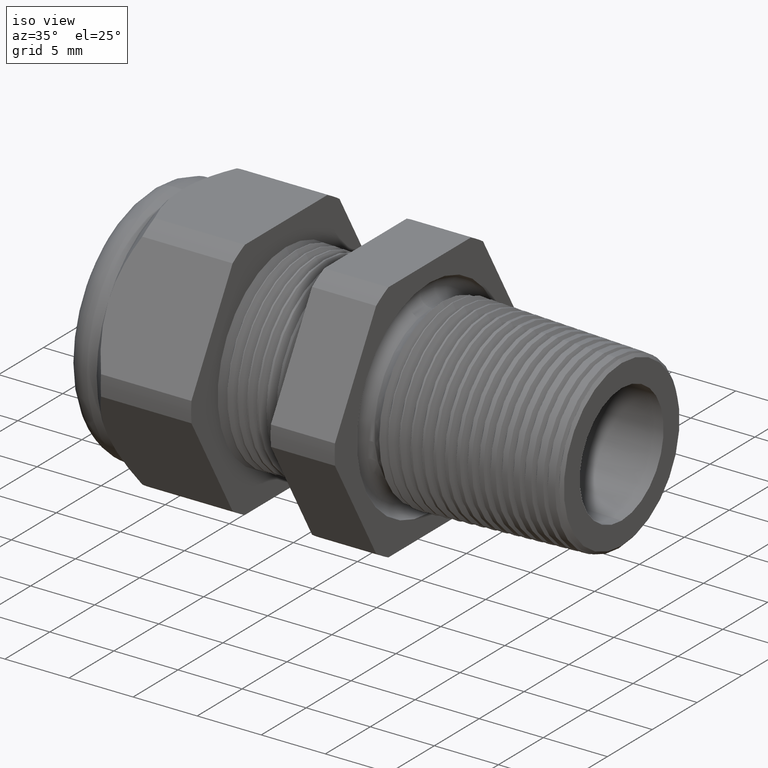
[diagram: clean part render]
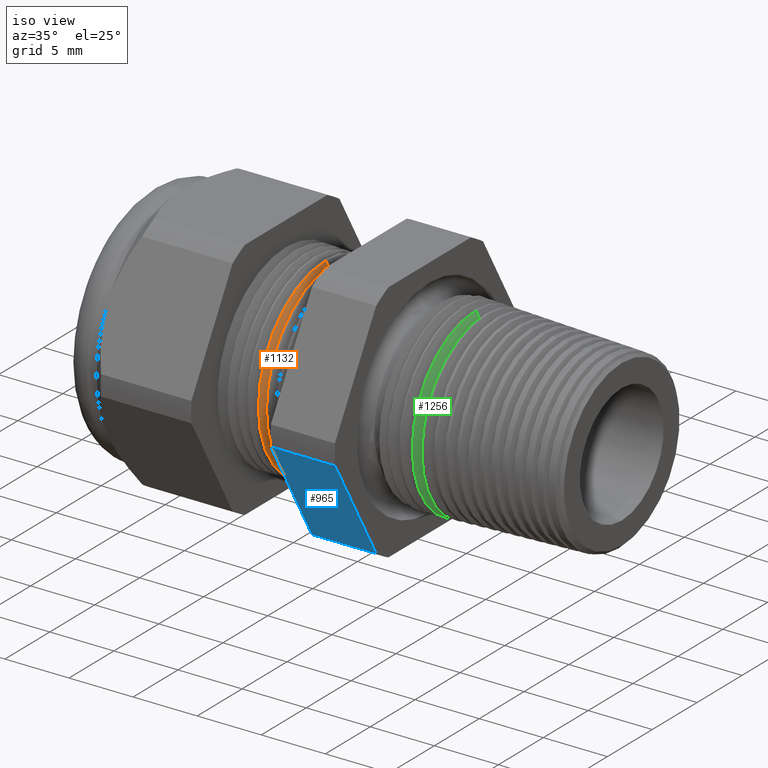
[diagram: same view with three faces highlighted in distinct colors, each labeled with its STEP entity id]
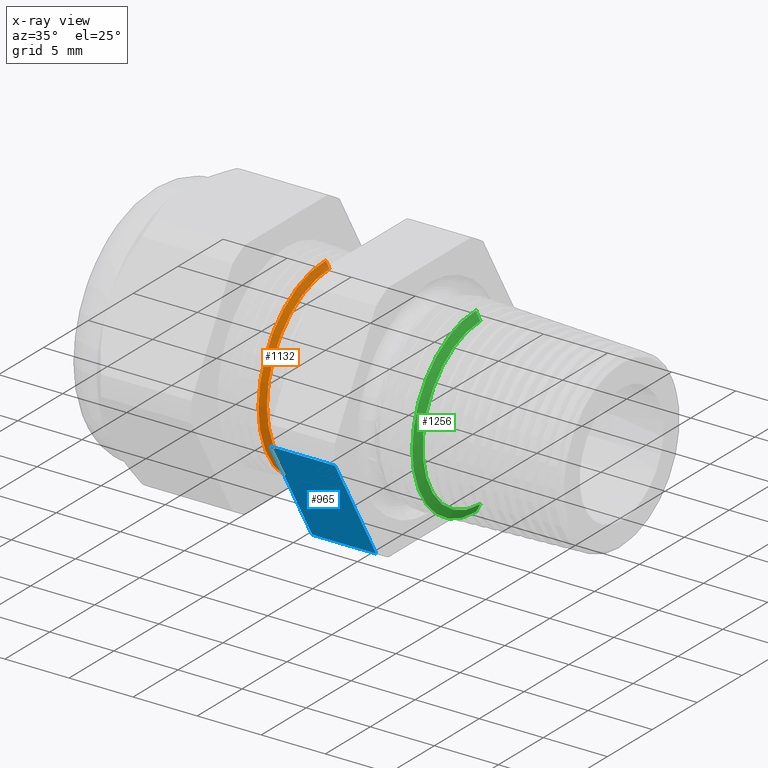
[diagram: x-ray of the same camera — body ghosted, the three highlighted faces saturated]
A machine part, iso view with three faces highlighted in distinct colors.
The next image is the same camera in x-ray (body ghosted, the three faces saturated) — at least one of them is partly hidden behind the body in this view.
Their STEP definitions:

[orange] entity #1132 — the highlighted conical surface has half-angle 62 deg.
#97 = EDGE_CURVE ( 'NONE', #112, #98, #2241, .T. ) ;
#98 = VERTEX_POINT ( 'NONE', #2232 ) ;
#112 = VERTEX_POINT ( 'NONE', #2269 ) ;
#113 = VERTEX_POINT ( 'NONE', #2268 ) ;
#155 = VERTEX_POINT ( 'NONE', #2371 ) ;
#157 = EDGE_CURVE ( 'NONE', #113, #155, #2370, .T. ) ;
#612 = EDGE_CURVE ( 'NONE', #155, #98, #3215, .T. ) ;
#1132 = ADVANCED_FACE ( 'NONE', ( #4155 ), #4154, .T. ) ;
#1133 = EDGE_LOOP ( 'NONE', ( #1134, #1135, #1137, #1189 ) ) ;
#1134 = ORIENTED_EDGE ( 'NONE', *, *, #97, .F. ) ;
#1135 = ORIENTED_EDGE ( 'NONE', *, *, #1136, .F. ) ;
#1136 = EDGE_CURVE ( 'NONE', #113, #112, #4149, .T. ) ;
#1137 = ORIENTED_EDGE ( 'NONE', *, *, #157, .T. ) ;
#1189 = ORIENTED_EDGE ( 'NONE', *, *, #612, .T. ) ;
#2232 = CARTESIAN_POINT ( 'NONE',  ( -0.6285958635830611900, 3.622793101166233200E-017, -0.2957302278010600600 ) ) ;
#2233 = DIRECTION ( 'NONE',  ( -0.4694715627859021900, 1.081298943409537900E-016, -0.8829475928589208800 ) ) ;
#2234 = VECTOR ( 'NONE', #2233, 39.37007874015748100 ) ;
#2235 = CARTESIAN_POINT ( 'NONE',  ( -0.6308661417322835000, 3.673940397442058900E-017, -0.2999999999999999900 ) ) ;
#2241 = LINE ( 'NONE', #2235, #2234 ) ;
#2268 = CARTESIAN_POINT ( 'NONE',  ( -0.6173136650747177400, 0.0000000000000000000, 0.2745114984791284200 ) ) ;
#2269 = CARTESIAN_POINT ( 'NONE',  ( -0.6173136650747177400, 3.491723524146469700E-017, -0.2745114984791284200 ) ) ;
#2367 = DIRECTION ( 'NONE',  ( -0.4694715627859021900, 0.0000000000000000000, 0.8829475928589208800 ) ) ;
#2368 = VECTOR ( 'NONE', #2367, 39.37007874015748100 ) ;
#2369 = CARTESIAN_POINT ( 'NONE',  ( -0.6308661417322835000, 0.0000000000000000000, 0.2999999999999999900 ) ) ;
#2370 = LINE ( 'NONE', #2369, #2368 ) ;
#2371 = CARTESIAN_POINT ( 'NONE',  ( -0.6285958635830611900, 0.0000000000000000000, 0.2957302278010600600 ) ) ;
#3207 = DIRECTION ( 'NONE',  ( 0.0000000000000000000, 0.0000000000000000000, 1.000000000000000000 ) ) ;
#3208 = DIRECTION ( 'NONE',  ( 1.000000000000000000, 0.0000000000000000000, 0.0000000000000000000 ) ) ;
#3209 = CARTESIAN_POINT ( 'NONE',  ( -0.6285958635830611900, 0.0000000000000000000, 0.0000000000000000000 ) ) ;
#3210 = AXIS2_PLACEMENT_3D ( 'NONE', #3209, #3208, #3207 ) ;
#3215 = CIRCLE ( 'NONE', #3210, 0.2957302278010600600 ) ;
#4146 = DIRECTION ( 'NONE',  ( 0.0000000000000000000, 0.0000000000000000000, -1.000000000000000000 ) ) ;
#4147 = DIRECTION ( 'NONE',  ( 1.000000000000000000, 0.0000000000000000000, 0.0000000000000000000 ) ) ;
#4148 = AXIS2_PLACEMENT_3D ( 'NONE', #4153, #4147, #4146 ) ;
#4149 = CIRCLE ( 'NONE', #4148, 0.2745114984791284200 ) ;
#4150 = DIRECTION ( 'NONE',  ( 0.0000000000000000000, 0.0000000000000000000, 1.000000000000000000 ) ) ;
#4151 = DIRECTION ( 'NONE',  ( -1.000000000000000000, 0.0000000000000000000, 0.0000000000000000000 ) ) ;
#4152 = AXIS2_PLACEMENT_3D ( 'NONE', #4159, #4151, #4150 ) ;
#4153 = CARTESIAN_POINT ( 'NONE',  ( -0.6173136650747177400, 0.0000000000000000000, 0.0000000000000000000 ) ) ;
#4154 = CONICAL_SURFACE ( 'NONE', #4152, 0.2999999999999999900, 1.082104136236471400 ) ;
#4155 = FACE_OUTER_BOUND ( 'NONE', #1133, .T. ) ;
#4159 = CARTESIAN_POINT ( 'NONE',  ( -0.6308661417322835000, 0.0000000000000000000, 0.0000000000000000000 ) ) ;

[blue] entity #965 — the highlighted planar face has unit normal (0, -0.866, -0.5).
#809 = VERTEX_POINT ( 'NONE', #3680 ) ;
#811 = EDGE_CURVE ( 'NONE', #809, #812, #3673, .T. ) ;
#812 = VERTEX_POINT ( 'NONE', #3669 ) ;
#940 = ORIENTED_EDGE ( 'NONE', *, *, #961, .F. ) ;
#941 = ORIENTED_EDGE ( 'NONE', *, *, #811, .F. ) ;
#942 = ORIENTED_EDGE ( 'NONE', *, *, #943, .T. ) ;
#943 = EDGE_CURVE ( 'NONE', #809, #944, #3888, .T. ) ;
#944 = VERTEX_POINT ( 'NONE', #3880 ) ;
#945 = ORIENTED_EDGE ( 'NONE', *, *, #946, .F. ) ;
#946 = EDGE_CURVE ( 'NONE', #962, #944, #3944, .T. ) ;
#961 = EDGE_CURVE ( 'NONE', #812, #962, #3923, .T. ) ;
#962 = VERTEX_POINT ( 'NONE', #3915 ) ;
#965 = ADVANCED_FACE ( 'NONE', ( #3914 ), #3973, .T. ) ;
#966 = EDGE_LOOP ( 'NONE', ( #940, #941, #942, #945 ) ) ;
#3669 = CARTESIAN_POINT ( 'NONE',  ( -0.3100000000000000000, -0.2344281053908202100, -0.3439586107409880500 ) ) ;
#3670 = DIRECTION ( 'NONE',  ( 0.0000000000000000000, 0.5000000000000003300, -0.8660254037844383700 ) ) ;
#3671 = VECTOR ( 'NONE', #3670, 39.37007874015748100 ) ;
#3672 = CARTESIAN_POINT ( 'NONE',  ( -0.3100000000000000000, -0.1372595264191642800, -0.5122595264191648300 ) ) ;
#3673 = LINE ( 'NONE', #3672, #3671 ) ;
#3680 = CARTESIAN_POINT ( 'NONE',  ( -0.3100000000000000000, -0.4150909474475088000, -0.03104138925901237000 ) ) ;
#3880 = CARTESIAN_POINT ( 'NONE',  ( -0.5068503937007874400, -0.4150909474475088000, -0.03104138925901237000 ) ) ;
#3881 = DIRECTION ( 'NONE',  ( -1.000000000000000000, 0.0000000000000000000, 0.0000000000000000000 ) ) ;
#3882 = VECTOR ( 'NONE', #3881, 39.37007874015748100 ) ;
#3883 = CARTESIAN_POINT ( 'NONE',  ( 0.2800000000000000300, -0.4150909474475088000, -0.03104138925901237000 ) ) ;
#3888 = LINE ( 'NONE', #3883, #3882 ) ;
#3914 = FACE_OUTER_BOUND ( 'NONE', #966, .T. ) ;
#3915 = CARTESIAN_POINT ( 'NONE',  ( -0.5068503937007874400, -0.2344281053908202100, -0.3439586107409880500 ) ) ;
#3916 = DIRECTION ( 'NONE',  ( -1.000000000000000000, 0.0000000000000000000, 0.0000000000000000000 ) ) ;
#3917 = VECTOR ( 'NONE', #3916, 39.37007874015748100 ) ;
#3918 = CARTESIAN_POINT ( 'NONE',  ( 0.2800000000000000300, -0.2344281053908202100, -0.3439586107409880500 ) ) ;
#3923 = LINE ( 'NONE', #3918, #3917 ) ;
#3941 = DIRECTION ( 'NONE',  ( 0.0000000000000000000, -0.5000000000000003300, 0.8660254037844383700 ) ) ;
#3942 = VECTOR ( 'NONE', #3941, 39.37007874015748100 ) ;
#3943 = CARTESIAN_POINT ( 'NONE',  ( -0.5068503937007874400, -0.1372595264191642800, -0.5122595264191648300 ) ) ;
#3944 = LINE ( 'NONE', #3943, #3942 ) ;
#3969 = DIRECTION ( 'NONE',  ( 0.0000000000000000000, 0.5000000000000003300, -0.8660254037844383700 ) ) ;
#3970 = DIRECTION ( 'NONE',  ( 0.0000000000000000000, -0.8660254037844384900, -0.5000000000000004400 ) ) ;
#3971 = CARTESIAN_POINT ( 'NONE',  ( 0.2800000000000000300, -0.2344281053908202900, -0.3439586107409879900 ) ) ;
#3972 = AXIS2_PLACEMENT_3D ( 'NONE', #3971, #3970, #3969 ) ;
#3973 = PLANE ( 'NONE',  #3972 ) ;

[green] entity #1256 — the highlighted conical surface has half-angle 62 deg.
#589 = EDGE_CURVE ( 'NONE', #1495, #1496, #3191, .T. ) ;
#1256 = ADVANCED_FACE ( 'NONE', ( #4325 ), #4320, .T. ) ;
#1257 = EDGE_LOOP ( 'NONE', ( #1258, #1259, #1261, #1262 ) ) ;
#1258 = ORIENTED_EDGE ( 'NONE', *, *, #1503, .F. ) ;
#1259 = ORIENTED_EDGE ( 'NONE', *, *, #1260, .F. ) ;
#1260 = EDGE_CURVE ( 'NONE', #1322, #1393, #4314, .T. ) ;
#1261 = ORIENTED_EDGE ( 'NONE', *, *, #1500, .T. ) ;
#1262 = ORIENTED_EDGE ( 'NONE', *, *, #589, .T. ) ;
#1322 = VERTEX_POINT ( 'NONE', #4409 ) ;
#1393 = VERTEX_POINT ( 'NONE', #4499 ) ;
#1495 = VERTEX_POINT ( 'NONE', #4663 ) ;
#1496 = VERTEX_POINT ( 'NONE', #4662 ) ;
#1500 = EDGE_CURVE ( 'NONE', #1322, #1495, #4660, .T. ) ;
#1503 = EDGE_CURVE ( 'NONE', #1393, #1496, #4651, .T. ) ;
#3188 = DIRECTION ( 'NONE',  ( 0.0000000000000000000, 0.0000000000000000000, 1.000000000000000000 ) ) ;
#3189 = DIRECTION ( 'NONE',  ( 1.000000000000000000, 0.0000000000000000000, 0.0000000000000000000 ) ) ;
#3190 = AXIS2_PLACEMENT_3D ( 'NONE', #3196, #3189, #3188 ) ;
#3191 = CIRCLE ( 'NONE', #3190, 0.2796232141890905300 ) ;
#3196 = CARTESIAN_POINT ( 'NONE',  ( -0.1673513421592404700, 0.0000000000000000000, 0.0000000000000000000 ) ) ;
#4311 = DIRECTION ( 'NONE',  ( 0.0000000000000000000, 0.0000000000000000000, -1.000000000000000000 ) ) ;
#4312 = DIRECTION ( 'NONE',  ( 1.000000000000000000, 0.0000000000000000000, 0.0000000000000000000 ) ) ;
#4313 = AXIS2_PLACEMENT_3D ( 'NONE', #4319, #4312, #4311 ) ;
#4314 = CIRCLE ( 'NONE', #4313, 0.2540184132628080000 ) ;
#4315 = DIRECTION ( 'NONE',  ( 0.0000000000000000000, 0.0000000000000000000, 1.000000000000000000 ) ) ;
#4316 = DIRECTION ( 'NONE',  ( -1.000000000000000000, 0.0000000000000000000, 0.0000000000000000000 ) ) ;
#4317 = CARTESIAN_POINT ( 'NONE',  ( -0.1699999999999999600, 0.0000000000000000000, 0.0000000000000000000 ) ) ;
#4318 = AXIS2_PLACEMENT_3D ( 'NONE', #4317, #4316, #4315 ) ;
#4319 = CARTESIAN_POINT ( 'NONE',  ( -0.1537370280109210400, 0.0000000000000000000, 0.0000000000000000000 ) ) ;
#4320 = CONICAL_SURFACE ( 'NONE', #4318, 0.2846046150878539000, 1.082104136236471800 ) ;
#4325 = FACE_OUTER_BOUND ( 'NONE', #1257, .T. ) ;
#4409 = CARTESIAN_POINT ( 'NONE',  ( -0.1537370280109210400, 0.0000000000000000000, 0.2540184132628080000 ) ) ;
#4499 = CARTESIAN_POINT ( 'NONE',  ( -0.1537370280109210400, 3.267612554753759700E-017, -0.2540184132628080000 ) ) ;
#4648 = DIRECTION ( 'NONE',  ( -0.4694715627859018000, 1.081298943409538000E-016, -0.8829475928589209900 ) ) ;
#4649 = VECTOR ( 'NONE', #4648, 39.37007874015748100 ) ;
#4650 = CARTESIAN_POINT ( 'NONE',  ( -0.1699999999999999600, 3.485401308899047800E-017, -0.2846046150878539000 ) ) ;
#4651 = LINE ( 'NONE', #4650, #4649 ) ;
#4652 = DIRECTION ( 'NONE',  ( -0.4694715627859018000, 0.0000000000000000000, 0.8829475928589209900 ) ) ;
#4653 = VECTOR ( 'NONE', #4652, 39.37007874015748100 ) ;
#4654 = CARTESIAN_POINT ( 'NONE',  ( -0.1699999999999999600, 0.0000000000000000000, 0.2846046150878539000 ) ) ;
#4660 = LINE ( 'NONE', #4654, #4653 ) ;
#4662 = CARTESIAN_POINT ( 'NONE',  ( -0.1673513421592404700, 3.425523832454768000E-017, -0.2796232141890905300 ) ) ;
#4663 = CARTESIAN_POINT ( 'NONE',  ( -0.1673513421592404700, 0.0000000000000000000, 0.2796232141890905300 ) ) ;